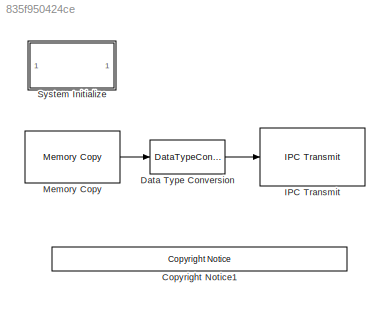
MODEL slx_835f950424ce
KIND model
CONFIG AbsTol = auto
CONFIG EnableMultiTasking = on
CONFIG FixedStep = 0.2
CONFIG MaxStep = auto
CONFIG MinStep = auto
CONFIG RelTol = 1e-3
CONFIG SampleTimeConstraint = Unconstrained
CONFIG SolverName = FixedStepDiscrete
CONFIG StartTime = 0.0
CONFIG StopTime = Inf
BLOCK [Reference] <copyright redacted>
  Ports = []
  SourceBlock = demo_controls/<copyright redacted>
  SourceProductBaseCode = ME
  SourceType = <copyright redacted>
BLOCK [DataTypeConversion] Data Type Conversion
  OutDataTypeStr = uint32
  RndMeth = Floor
  SaturateOnIntegerOverflow = off
BLOCK [Reference] IPC Transmit  REF=c2837xDlib/IPC Transmit
  Ports = [1]
  SourceBlock = c2837xDlib/IPC Transmit
  SourceProductBaseCode = TIC2000
  SourceType = C28x IPC Transmit
BLOCK [Reference] Memory Copy  REF=idelinklib_common/Memory Copy
  Ports = [0, 1]
  SourceBlock = idelinklib_common/Memory Copy
  SourceProductBaseCode = ME
  SourceType = Memory Copy
BLOCK [SubSystem] System Initialize
  CopyFcn = cccopyfcn(gcb)
  OpenFcn = ccopenfcn('System Initialize Function')
  Ports = []
  RequestExecContextInheritance = off
LINE Data Type Conversion:1 -> IPC Transmit:1
LINE Memory Copy:1 -> Data Type Conversion:1
